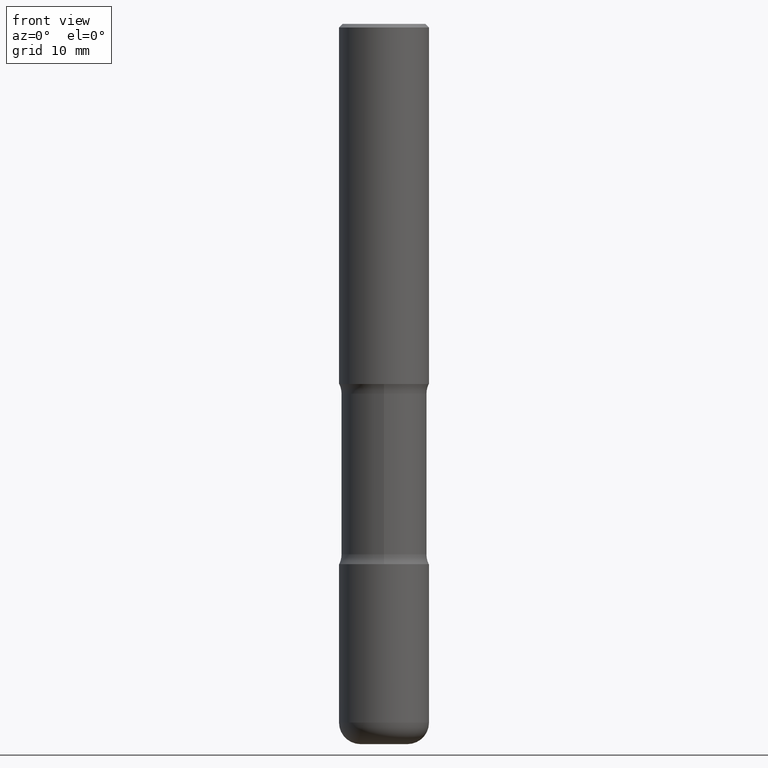
[diagram: clean part render]
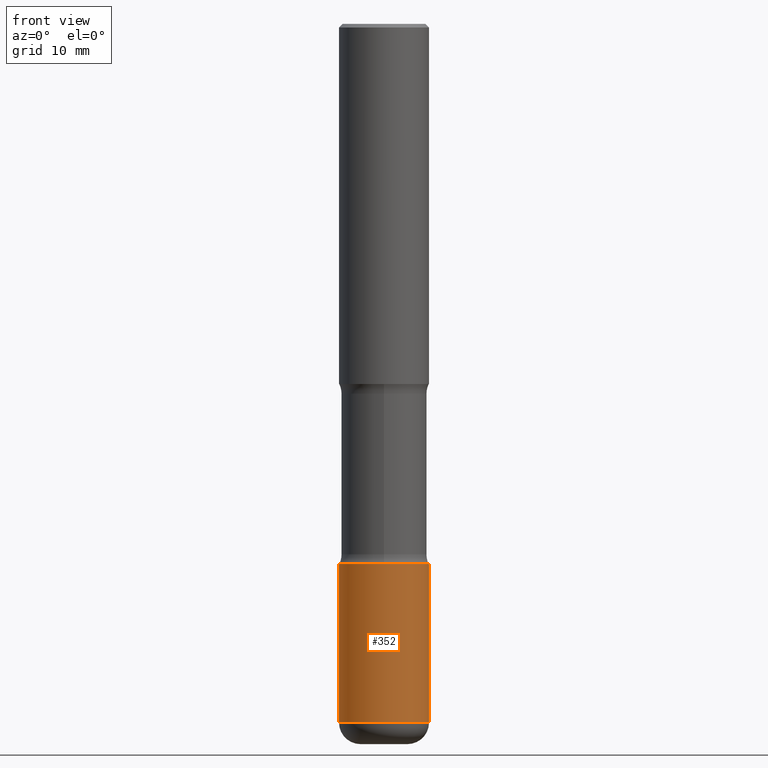
[diagram: same view with one face highlighted and labeled with its STEP entity id]
A machine part, front view. The second image highlights one B-rep face of the part: STEP entity #352.
In plain terms, the highlighted cylindrical surface (partial cylindrical patch) has radius 6.35 mm, axis along (-0, 0, 1).
Its self-contained STEP definition (entity closure, byte-faithful):
#1 = CARTESIAN_POINT ( 'NONE',  ( -0.2500000000000003331, -1.177059075531115523E-14, -3.880000000000000782 ) ) ;
#24 = CARTESIAN_POINT ( 'NONE',  ( 0.2500000000000003331, -1.529268826413297711E-14, -3.880000000000000782 ) ) ;
#30 = CARTESIAN_POINT ( 'NONE',  ( -0.2500000000000003331, 1.776356839400252831E-15, -1.229733772563727987E-29 ) ) ;
#42 = EDGE_CURVE ( 'NONE', #493, #207, #291, .T. ) ;
#51 = DIRECTION ( 'NONE',  ( -2.445468806185136877E-29, 3.491481338843145188E-15, 1.000000000000000000 ) ) ;
#88 = CARTESIAN_POINT ( 'NONE',  ( 7.336406418555409790E-29, -1.047444401652943635E-14, -3.000000000000000444 ) ) ;
#91 = EDGE_CURVE ( 'NONE', #359, #207, #270, .T. ) ;
#106 = EDGE_LOOP ( 'NONE', ( #549, #303, #167, #502 ) ) ;
#110 = AXIS2_PLACEMENT_3D ( 'NONE', #169, #395, #258 ) ;
#114 = DIRECTION ( 'NONE',  ( -2.445468806185136597E-29, 3.491481338843145583E-15, 1.000000000000000000 ) ) ;
#158 = CYLINDRICAL_SURFACE ( 'NONE', #410, 0.2500000000000003331 ) ;
#167 = ORIENTED_EDGE ( 'NONE', *, *, #91, .T. ) ;
#169 = CARTESIAN_POINT ( 'NONE',  ( 9.488418967998331206E-29, -1.354694759471140727E-14, -3.880000000000000782 ) ) ;
#196 = CARTESIAN_POINT ( 'NONE',  ( 0.000000000000000000, 0.000000000000000000, 0.000000000000000000 ) ) ;
#203 = LINE ( 'NONE', #30, #467 ) ;
#207 = VERTEX_POINT ( 'NONE', #220 ) ;
#209 = VERTEX_POINT ( 'NONE', #1 ) ;
#220 = CARTESIAN_POINT ( 'NONE',  ( 0.2500000000000002776, -1.222018468595100619E-14, -3.000000000000000444 ) ) ;
#258 = DIRECTION ( 'NONE',  ( 1.000000000000000000, -6.982962677686267499E-15, 0.000000000000000000 ) ) ;
#267 = CARTESIAN_POINT ( 'NONE',  ( -0.2500000000000002776, -1.023433896622016898E-14, -3.000000000000000444 ) ) ;
#270 = LINE ( 'NONE', #535, #282 ) ;
#282 = VECTOR ( 'NONE', #51, 39.37007874015748143 ) ;
#287 = DIRECTION ( 'NONE',  ( 1.000000000000000000, -6.982962677686266711E-15, 4.876176775795935793E-29 ) ) ;
#291 = CIRCLE ( 'NONE', #394, 0.2500000000000002776 ) ;
#303 = ORIENTED_EDGE ( 'NONE', *, *, #460, .T. ) ;
#340 = DIRECTION ( 'NONE',  ( 1.000000000000000000, -6.982962677686270655E-15, 0.000000000000000000 ) ) ;
#352 = ADVANCED_FACE ( 'NONE', ( #540 ), #158, .T. ) ;
#357 = CIRCLE ( 'NONE', #110, 0.2500000000000003886 ) ;
#359 = VERTEX_POINT ( 'NONE', #24 ) ;
#377 = EDGE_CURVE ( 'NONE', #209, #493, #203, .T. ) ;
#394 = AXIS2_PLACEMENT_3D ( 'NONE', #88, #429, #340 ) ;
#395 = DIRECTION ( 'NONE',  ( -2.445468806185136597E-29, 3.491481338843145583E-15, 1.000000000000000000 ) ) ;
#410 = AXIS2_PLACEMENT_3D ( 'NONE', #196, #114, #287 ) ;
#429 = DIRECTION ( 'NONE',  ( -2.445468806185136597E-29, 3.491481338843145583E-15, 1.000000000000000000 ) ) ;
#460 = EDGE_CURVE ( 'NONE', #209, #359, #357, .T. ) ;
#467 = VECTOR ( 'NONE', #506, 39.37007874015748143 ) ;
#493 = VERTEX_POINT ( 'NONE', #267 ) ;
#502 = ORIENTED_EDGE ( 'NONE', *, *, #42, .F. ) ;
#506 = DIRECTION ( 'NONE',  ( -2.445468806185136877E-29, 3.491481338843145188E-15, 1.000000000000000000 ) ) ;
#535 = CARTESIAN_POINT ( 'NONE',  ( 0.2500000000000003331, -1.745740669421569044E-15, 1.219044193948985630E-29 ) ) ;
#540 = FACE_OUTER_BOUND ( 'NONE', #106, .T. ) ;
#549 = ORIENTED_EDGE ( 'NONE', *, *, #377, .F. ) ;